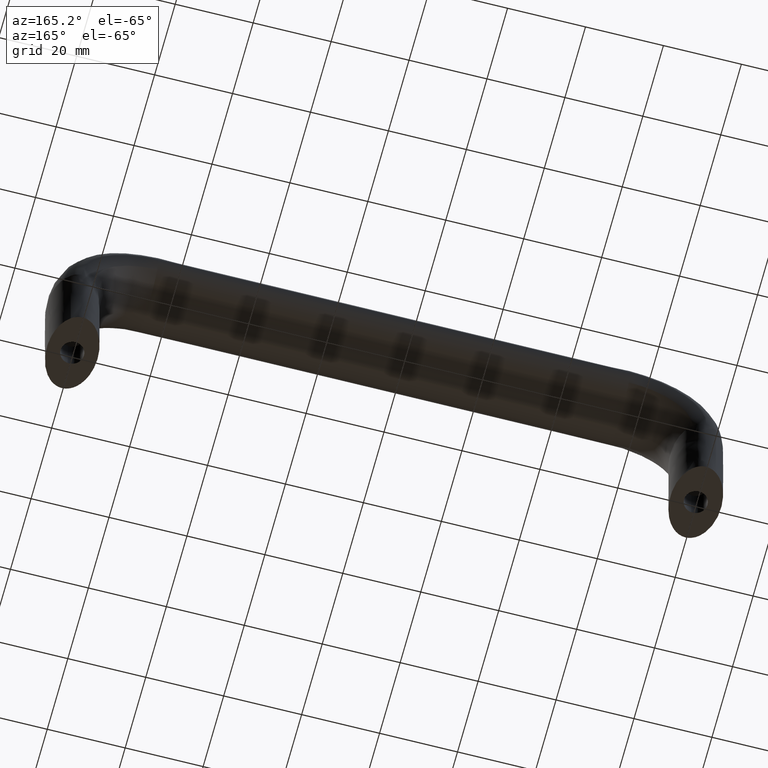
[diagram: clean part render]
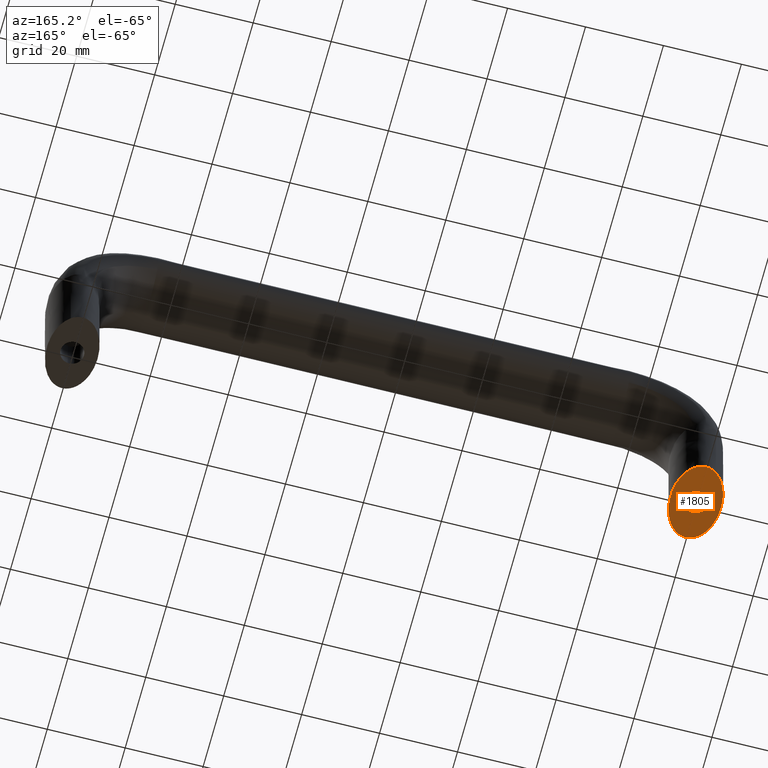
[diagram: same view with one face highlighted and labeled with its STEP entity id]
A machine part, auxiliary view. The second image highlights one B-rep face of the part: STEP entity #1805.
In plain terms, the highlighted face is a freeform B-spline surface patch.
Its self-contained STEP definition (entity closure, byte-faithful):
#85=CARTESIAN_POINT('',(0.354102704643020,-2.979028579011033,2.839428E-017));
#86=VERTEX_POINT('',#85);
#92=CARTESIAN_POINT('',(-3.0,0.0,0.0));
#93=VERTEX_POINT('',#92);
#94=CARTESIAN_POINT('',(0.354102704643020,-2.979028579011033,2.839428E-017));
#95=CARTESIAN_POINT('',(0.177672359635587,-3.000000000000000,0.0));
#96=CARTESIAN_POINT('',(0.0,-3.0,0.0));
#97=CARTESIAN_POINT('',(-3.0,-3.0,0.0));
#98=CARTESIAN_POINT('',(-3.0,0.0,0.0));
#106=(BOUNDED_CURVE()B_SPLINE_CURVE(2,(#94,#95,#96,#97,#98),.UNSPECIFIED.,.F.,.U.)B_SPLINE_CURVE_WITH_KNOTS((3,2,3),(0.229562473439313,0.250000000000000,0.500000000000000),.UNSPECIFIED.)CURVE()GEOMETRIC_REPRESENTATION_ITEM()RATIONAL_B_SPLINE_CURVE((0.956026754038274,0.976055948244220,1.0,0.707106781186548,1.0))REPRESENTATION_ITEM(''));
#107=EDGE_CURVE('',#86,#93,#106,.T.);
#109=CARTESIAN_POINT('',(-0.183145619224617,2.994404395227677,2.775558E-017));
#110=VERTEX_POINT('',#109);
#111=CARTESIAN_POINT('',(-3.0,0.0,0.0));
#112=CARTESIAN_POINT('',(-3.0,2.822118199546168,0.0));
#113=CARTESIAN_POINT('',(-0.183145619224617,2.994404395227677,2.775558E-017));
#121=(BOUNDED_CURVE()B_SPLINE_CURVE(2,(#111,#112,#113),.UNSPECIFIED.,.F.,.U.)B_SPLINE_CURVE_WITH_KNOTS((3,3),(0.500000000000000,0.739332962170511),.UNSPECIFIED.)CURVE()GEOMETRIC_REPRESENTATION_ITEM()RATIONAL_B_SPLINE_CURVE((1.0,0.719603993366883,0.976072041520055))REPRESENTATION_ITEM(''));
#122=EDGE_CURVE('',#93,#110,#121,.T.);
#196=CARTESIAN_POINT('',(3.0,0.0,0.0));
#197=VERTEX_POINT('',#196);
#198=CARTESIAN_POINT('',(-0.183145619224617,2.994404395227677,2.775558E-017));
#199=CARTESIAN_POINT('',(-0.091658290517551,3.0,0.0));
#200=CARTESIAN_POINT('',(0.0,3.0,0.0));
#201=CARTESIAN_POINT('',(3.0,3.0,0.0));
#202=CARTESIAN_POINT('',(3.0,0.0,0.0));
#210=(BOUNDED_CURVE()B_SPLINE_CURVE(2,(#198,#199,#200,#201,#202),.UNSPECIFIED.,.F.,.U.)B_SPLINE_CURVE_WITH_KNOTS((3,2,3),(0.739332962170510,0.750000000000000,1.0),.UNSPECIFIED.)CURVE()GEOMETRIC_REPRESENTATION_ITEM()RATIONAL_B_SPLINE_CURVE((0.976072041520054,0.987502787819664,1.0,0.707106781186548,1.0))REPRESENTATION_ITEM(''));
#211=EDGE_CURVE('',#110,#197,#210,.T.);
#213=CARTESIAN_POINT('',(3.0,0.0,0.0));
#214=CARTESIAN_POINT('',(3.000000000000001,-2.664523576642190,0.0));
#215=CARTESIAN_POINT('',(0.354102704643020,-2.979028579011033,2.839428E-017));
#223=(BOUNDED_CURVE()B_SPLINE_CURVE(2,(#213,#214,#215),.UNSPECIFIED.,.F.,.U.)B_SPLINE_CURVE_WITH_KNOTS((3,3),(0.0,0.229562473439313),.UNSPECIFIED.)CURVE()GEOMETRIC_REPRESENTATION_ITEM()RATIONAL_B_SPLINE_CURVE((1.0,0.731050832942327,0.956026754038274))REPRESENTATION_ITEM(''));
#224=EDGE_CURVE('',#197,#86,#223,.T.);
#1622=CARTESIAN_POINT('',(-2.767718893684363,9.043070626024541,-8.881784E-016));
#1623=VERTEX_POINT('',#1622);
#1631=CARTESIAN_POINT('',(3.252607E-016,-10.0,0.0));
#1632=VERTEX_POINT('',#1631);
#1633=CARTESIAN_POINT('',(-2.767718893684363,9.043070626024541,-8.881784E-016));
#1634=CARTESIAN_POINT('',(-3.789574658975921,8.304902883799825,-8.612512E-016));
#1635=CARTESIAN_POINT('',(-4.593843456445049,7.067814539892249,-8.100902E-016));
#1636=CARTESIAN_POINT('',(-5.508528250209070,5.660889516472560,-7.519055E-016));
#1637=CARTESIAN_POINT('',(-6.003269068346501,3.824138429711683,-6.712987E-016));
#1638=CARTESIAN_POINT('',(-6.498383111718206,1.986001724805809,-5.906311E-016));
#1639=CARTESIAN_POINT('',(-6.498549654176726,-0.002007286109241,-4.998300E-016));
#1640=CARTESIAN_POINT('',(-6.498716322272424,-1.991516021929472,-4.089603E-016));
#1641=CARTESIAN_POINT('',(-6.004283234472764,-3.828126606434048,-3.217885E-016));
#1642=CARTESIAN_POINT('',(-5.509477153587726,-5.666122703084651,-2.345510E-016));
#1643=CARTESIAN_POINT('',(-4.595717391098286,-7.071727548601301,-1.642796E-016));
#1644=CARTESIAN_POINT('',(-3.681268301609643,-8.478392761853588,-9.395525E-017));
#1645=CARTESIAN_POINT('',(-2.487293505025900,-9.239001272481852,-5.128251E-017));
#1646=CARTESIAN_POINT('',(-1.292964223232612,-9.999835604013510,-8.597102E-018));
#1647=CARTESIAN_POINT('',(3.252607E-016,-10.0,0.0));
#1648=B_SPLINE_CURVE_WITH_KNOTS('',2,(#1633,#1634,#1635,#1636,#1637,#1638,#1639,#1640,#1641,#1642,#1643,#1644,#1645,#1646,#1647),.UNSPECIFIED.,.F.,.U.,(3,2,2,2,2,2,2,3),(0.140006435608934,0.250000000000000,0.375000000000000,0.500000000000000,0.625000000000000,0.750000000000000,0.875000000000000,1.0),.UNSPECIFIED.);
#1649=EDGE_CURVE('',#1623,#1632,#1648,.T.);
#1714=CARTESIAN_POINT('',(-1.301043E-015,10.0,0.0));
#1715=VERTEX_POINT('',#1714);
#1716=CARTESIAN_POINT('',(5.827587E-016,-9.999999999999991,0.0));
#1717=CARTESIAN_POINT('',(1.293495947650843,-9.999801000622920,0.0));
#1718=CARTESIAN_POINT('',(2.487442310373089,-9.238795325112871,0.0));
#1719=CARTESIAN_POINT('',(3.682367494606962,-8.477165761672067,0.0));
#1720=CARTESIAN_POINT('',(4.596194077712559,-7.071067811865456,0.0));
#1721=CARTESIAN_POINT('',(5.510710038218062,-5.663909122344585,0.0));
#1722=CARTESIAN_POINT('',(6.005216961323355,-3.826834323650897,0.0));
#1723=CARTESIAN_POINT('',(6.500096933217217,-1.988373662603977,0.0));
#1724=CARTESIAN_POINT('',(6.500000000000003,-3.672735E-015,0.0));
#1725=CARTESIAN_POINT('',(6.499902993657782,1.989873662604707,0.0));
#1726=CARTESIAN_POINT('',(6.005216961323353,3.826834323650896,0.0));
#1727=CARTESIAN_POINT('',(5.510157745084252,5.665180760941928,0.0));
#1728=CARTESIAN_POINT('',(4.596194077712557,7.071067811865471,0.0));
#1729=CARTESIAN_POINT('',(3.681540929521299,8.478015443412405,0.0));
#1730=CARTESIAN_POINT('',(2.487442310373079,9.238795325112868,0.0));
#1731=CARTESIAN_POINT('',(1.292989169263922,9.999801078589059,0.0));
#1732=CARTESIAN_POINT('',(-1.409463E-015,9.999999999999996,0.0));
#1733=B_SPLINE_CURVE_WITH_KNOTS('',2,(#1716,#1717,#1718,#1719,#1720,#1721,#1722,#1723,#1724,#1725,#1726,#1727,#1728,#1729,#1730,#1731,#1732),.UNSPECIFIED.,.F.,.U.,(3,2,2,2,2,2,2,2,3),(0.0,0.125000000000000,0.250000000000000,0.375000000000000,0.500000000000000,0.625000000000000,0.750000000000000,0.875000000000000,1.0),.UNSPECIFIED.);
#1734=EDGE_CURVE('',#1632,#1715,#1733,.T.);
#1736=CARTESIAN_POINT('',(-1.301043E-015,10.0,0.0));
#1737=CARTESIAN_POINT('',(-1.292419972266740,9.998311845128828,-3.708114E-016));
#1738=CARTESIAN_POINT('',(-2.485155382816940,9.235630205565100,-7.881396E-016));
#1739=CARTESIAN_POINT('',(-2.628462429706642,9.143994078628568,-8.382815E-016));
#1740=CARTESIAN_POINT('',(-2.767718893684363,9.043070626024541,-8.881784E-016));
#1741=B_SPLINE_CURVE_WITH_KNOTS('',2,(#1736,#1737,#1738,#1739,#1740),.UNSPECIFIED.,.F.,.U.,(3,2,3),(0.0,0.125000000000000,0.140006435608934),.UNSPECIFIED.);
#1742=EDGE_CURVE('',#1715,#1623,#1741,.T.);
#1789=CARTESIAN_POINT('',(7.106841989853395,11.026340132477189,0.0));
#1790=CARTESIAN_POINT('',(7.191467509824884,-10.971334770274121,0.0));
#1791=CARTESIAN_POINT('',(-7.189678680535217,10.971341115496379,0.0));
#1792=CARTESIAN_POINT('',(-7.105053160563728,-11.026333787254931,0.0));
#1793=B_SPLINE_SURFACE_WITH_KNOTS('',1,1,((#1789,#1791),(#1790,#1792)),.UNSPECIFIED.,.F.,.F.,.U.,(2,2),(2,2),(0.0,21.997837680230418),(0.0,14.296626461187190),.UNSPECIFIED.);
#1794=ORIENTED_EDGE('',*,*,#1649,.F.);
#1795=ORIENTED_EDGE('',*,*,#1742,.F.);
#1796=ORIENTED_EDGE('',*,*,#1734,.F.);
#1797=EDGE_LOOP('',(#1794,#1795,#1796));
#1798=FACE_OUTER_BOUND('',#1797,.T.);
#1799=ORIENTED_EDGE('',*,*,#122,.F.);
#1800=ORIENTED_EDGE('',*,*,#107,.F.);
#1801=ORIENTED_EDGE('',*,*,#224,.F.);
#1802=ORIENTED_EDGE('',*,*,#211,.F.);
#1803=EDGE_LOOP('',(#1799,#1800,#1801,#1802));
#1804=FACE_BOUND('',#1803,.T.);
#1805=ADVANCED_FACE('',(#1798,#1804),#1793,.T.);